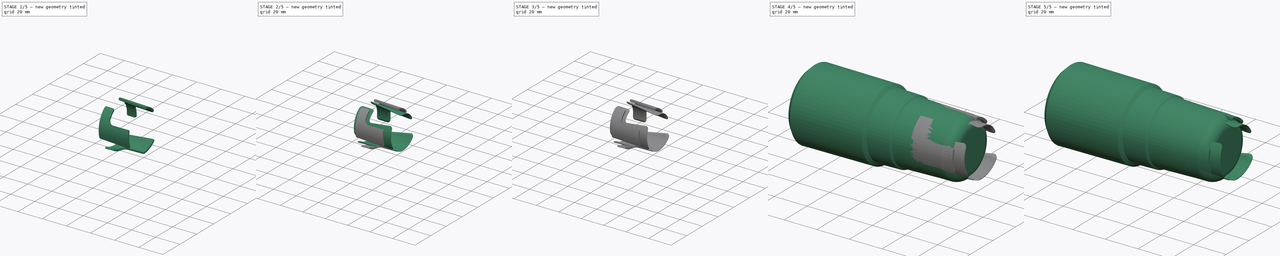
[diagram: build sequence overview — one tinted view per stage of 5, left to right]
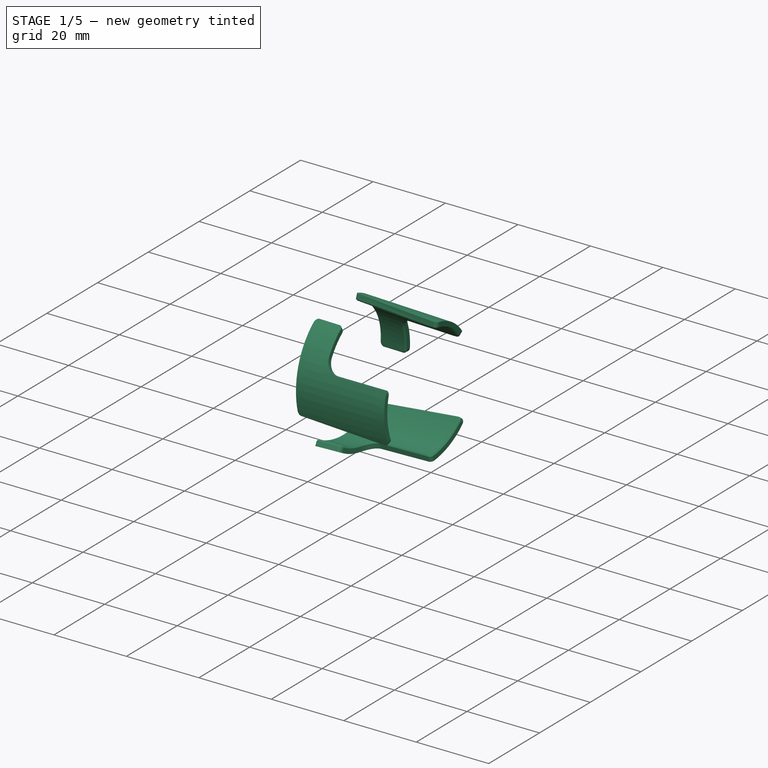
[diagram: stage 1 of 5 — iso view after this stage's code; geometry added in this stage tinted green]
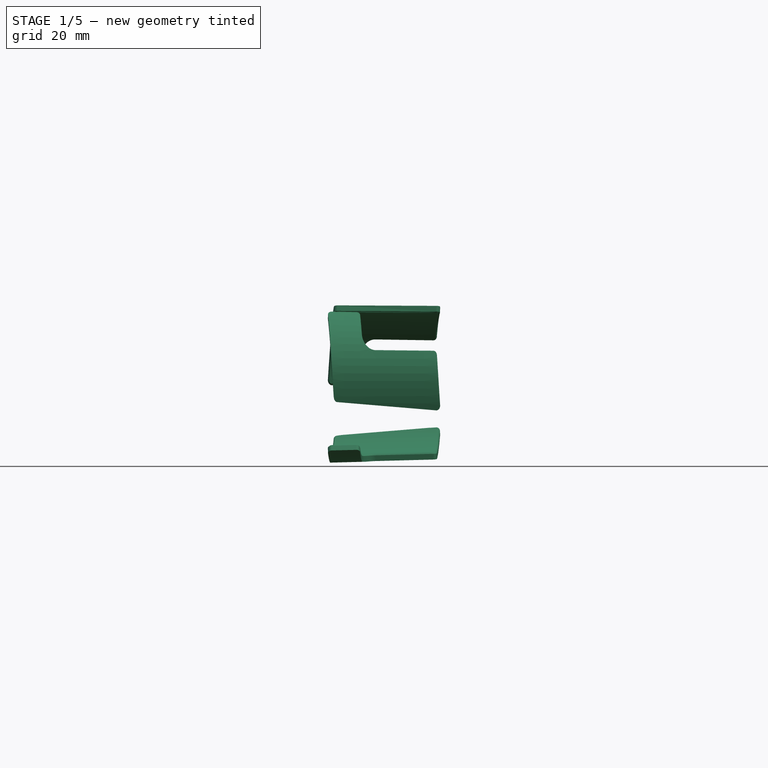
[diagram: stage 1 of 5 — front view after this stage's code; geometry added in this stage tinted green]
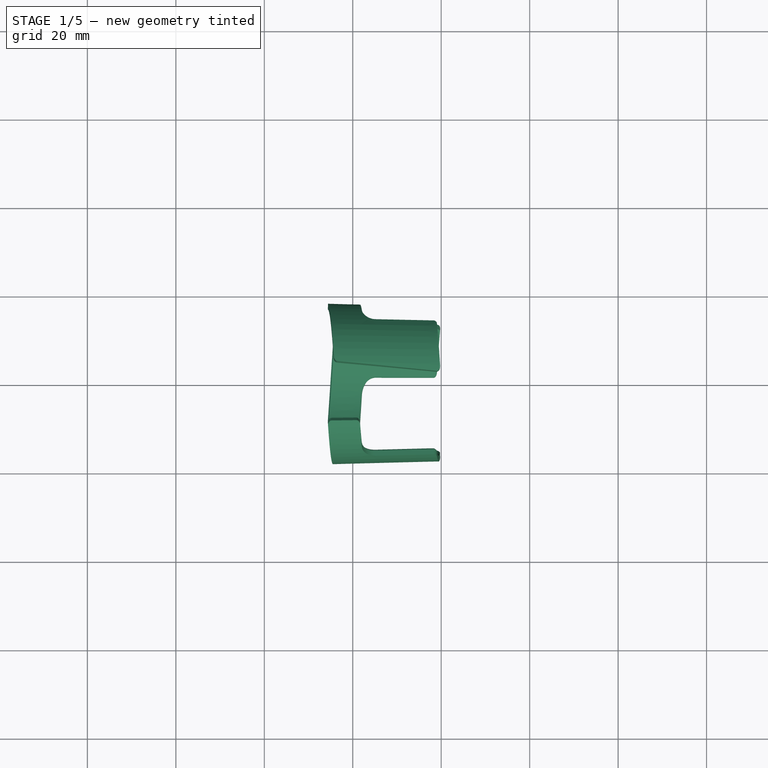
[diagram: stage 1 of 5 — top view after this stage's code; geometry added in this stage tinted green]
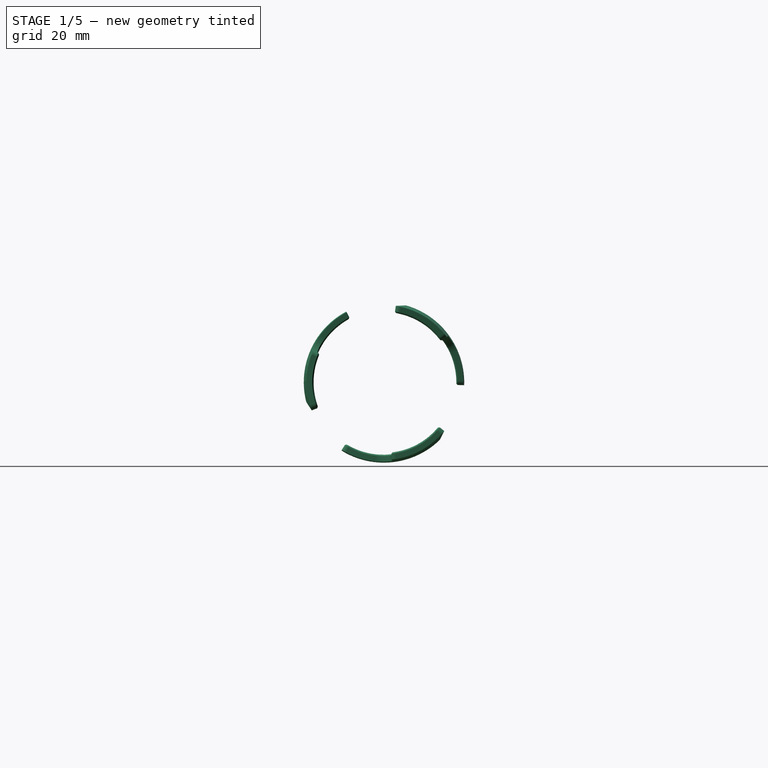
[diagram: stage 1 of 5 — right view after this stage's code; geometry added in this stage tinted green]
FCSTD DOCUMENT  (FreeCAD 0.20R)
Label: VacuumNozzle
License: Creative Commons Attribution-NonCommercial
LicenseURL: http://creativecommons.org/licenses/by-nc/4.0/
objects: Part::FeaturePython×6, Sketcher::SketchObject×4, PartDesign::Chamfer×3, PartDesign::Body×3, Part::Compound×3, Part::Feature×3, PartDesign::FeatureBase×2, PartDesign::Revolution×1, Part::Offset×1, Part::Cut×1, PartDesign::Fillet×1, Part::Chamfer×1
note: 31 computed .brp shape members not serialized (recipe doc carries the construction recipe); baked Part::Feature solids carry a one-line shape summary decoded from their .brp

FEATURE [Part::Feature] Shell001
  shape: bbox 36.06 x 37.49 x 37.49 mm, 3 faces, 0 solids (baked)
FEATURE [Sketcher::SketchObject] Sketch002
  FullyConstrained = false
  MapMode = 45
  Placement = pos=(75.4438,8e-16,0) rot=(0.57735,0.57735,0.57735;2.0944rad)
  Support = -> [Shell001]
  sketch-geometry (16):
    g0: LineSegment StartX=-57.0199 StartY=18.15 StartZ=0 EndX=57.0199 EndY=18.15 EndZ=0
    g1: LineSegment StartX=57.0199 StartY=18.15 StartZ=0 EndX=57.0199 EndY=-18.15 EndZ=0
    g2: LineSegment StartX=57.0199 StartY=-18.15 StartZ=0 EndX=-57.0199 EndY=-18.15 EndZ=0
    g3: LineSegment StartX=-48.1513 StartY=-0.414598 StartZ=0 EndX=-48.1513 EndY=7.7354 EndZ=0
    g4: LineSegment StartX=-25.0947 StartY=0.293025 StartZ=0 EndX=-46.8467 EndY=-1.61003 EndZ=0
    g5: ArcOfCircle CenterX=-46.9513 CenterY=7.7354 CenterZ=0 NormalX=0 NormalY=0 NormalZ=1 AngleXU=0 Radius=1.2 StartAngle=1.65806 EndAngle=3.14159
    g6: ArcOfCircle CenterX=-46.9513 CenterY=-0.414598 CenterZ=0 NormalX=0 NormalY=0 NormalZ=1 AngleXU=0 Radius=1.2 StartAngle=3.14159 EndAngle=4.79966
    g7: ArcOfCircle CenterX=-25.1993 CenterY=1.48846 CenterZ=0 NormalX=0 NormalY=0 NormalZ=1 AngleXU=0 Radius=1.2 StartAngle=4.79966 EndAngle=6.21591
    g8: LineSegment StartX=-36.1513 StartY=14.0329 StartZ=0 EndX=-36.1513 EndY=33.0173 EndZ=0
    g9: LineSegment StartX=-35.0559 StartY=34.2128 StartZ=0 EndX=-23.109 EndY=35.258 EndZ=0
    g10: LineSegment StartX=-21.8072 StartY=33.9819 StartZ=0 EndX=-24.002 EndY=1.40779 EndZ=0
    g11: LineSegment StartX=-40.2835 StartY=9.52334 StartZ=0 EndX=-47.0559 EndY=8.93084 EndZ=0
    g12: ArcOfCircle CenterX=-34.9513 CenterY=33.0173 CenterZ=0 NormalX=0 NormalY=0 NormalZ=1 AngleXU=0 Radius=1.2 StartAngle=1.65806 EndAngle=3.14159
    g13: ArcOfCircle CenterX=-23.0045 CenterY=34.0625 CenterZ=0 NormalX=0 NormalY=0 NormalZ=1 AngleXU=0 Radius=1.2 StartAngle=6.21591 EndAngle=7.94125
    g14: GeomPoint X=-23.1513 Y=14.0329 Z=0
    g15: ArcOfCircle CenterX=-40.6781 CenterY=14.0329 CenterZ=0 NormalX=0 NormalY=0 NormalZ=1 AngleXU=0 Radius=4.52675 StartAngle=4.79966 EndAngle=6.28319
  constraints (38):
    c: Coincident(g0,g1)
    c: Coincident(g1,g2)
    c: Horizontal(g0)
    c: Horizontal(g2)
    c: Vertical(g1)
    c: Symmetric(g0,g1,g-1)
    c: DistanceY(g2,g0) = 36.3
    c: DistanceX(g0,g0) = 114.04
    c: Tangent(g3,g5) = 1.5708
    c: Tangent(g3,g6) = 1.5708
    c: Tangent(g4,g6) = 1.5708
    c: Tangent(g4,g7) = 1.5708
    c: Equal(g7,g5)
    c: Radius(g7) = 1.2
    c: Parallel(g11,g4)
    c: Tangent(g8,g12) = 1.5708
    c: Tangent(g9,g12) = 1.5708
    c: Tangent(g9,g13) = 1.5708
    c: Tangent(g10,g13) = 1.5708
    c: Equal(g12,g5)
    c: Equal(g6,g13)
    c: Parallel(g9,g11)
    c: Radius(g6) = 1.2
    c: Vertical(g3)
    c: Angle(g4) = 3.22886
    c: PointOnObject(g14,g10)
    c: Horizontal(g14,g8)
    c: DistanceX(g8,g14) = 13
    c: DistanceX(g3,g8) = 12
    c: Tangent(g11,g5) = -1.5708
    c: Tangent(g10,g7) = 1.5708
    c: DistanceX(g13) = -23.0045
    c: DistanceY(g13) = 34.0625
    c: Tangent(g15,g8) = -1.5708
    c: Tangent(g15,g11) = 1.5708
    c: DistanceX(g15) = -40.6781
    c: Vertical(g8)
    c: DistanceY(g6,g5) = 8.15
FEATURE [Part::FeaturePython] Sketch_On_Surface001  # WARN: FeaturePython — macro-defined, semantics opaque (R4)
  ConstructionBounds = true
  FillExtrusion = true
  FillFaces = true
  ReverseU = false
  ReverseV = false
  Sketch = -> Sketch002
  SwapUV = false
  Thickness = -1.6
FEATURE [PartDesign::Body] Body001  label="NozzleKnockoutV2"
  BaseFeature = -> Cut
  Group = -> [BaseFeature,Fillet,Chamfer001]
  Origin = -> Origin001
  Tip = -> Chamfer001
FEATURE [Part::Chamfer] Chamfer002
  Base = -> Sketch_On_Surface001
  Edges = 1 edges r=0.3: [Edge20]
FEATURE [Part::FeaturePython] Array003  # Draft array (typed FeaturePython)
  Angle = 360
  ArrayType = 1
  Axis = (1,0,0)
  Base = -> Chamfer002
  Center = (0,0,0)
  Count = 3
  ExpandArray = false
  Fuse = false
  IntervalAxis = (0,0,0)
  IntervalX = (50,0,0)
  IntervalY = (0,50,0)
  IntervalZ = (0,0,50)
  NumberCircles = 3
  NumberPolar = 3
  NumberX = 2
  NumberY = 2
  NumberZ = 1
  PlacementList = 3 placements: [(0,0,0),(0,0,0),(0,0,0)]
  RadialDistance = 50
  ScaleList = (3) [(1,1,1),(1,1,1),(1,1,1)]
  Symmetry = 1
  TangentialDistance = 25
FEATURE [Part::Compound] Compound003  label="NotchKnockout"
  Links = -> [Array003]
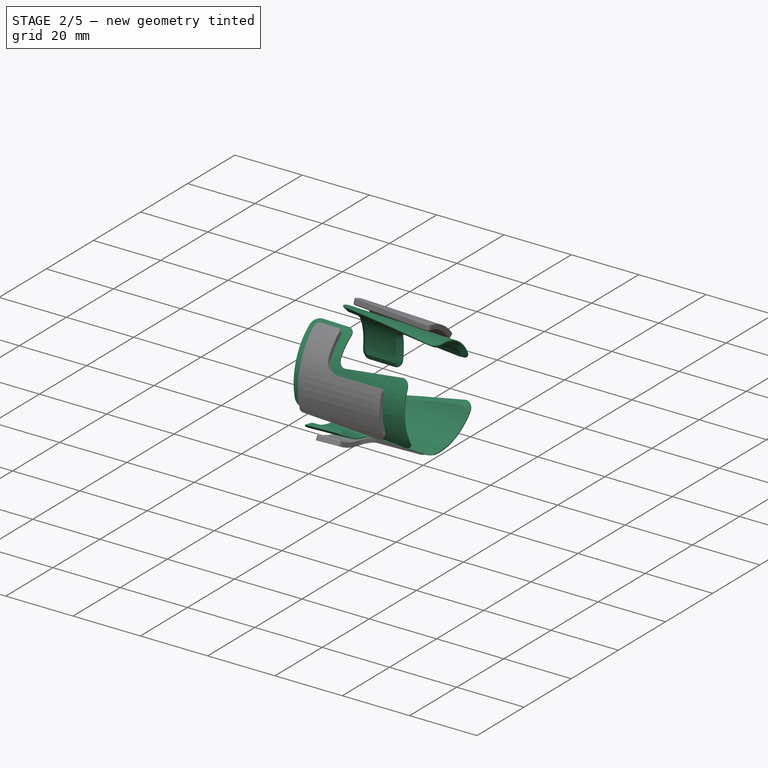
[diagram: stage 2 of 5 — iso view after this stage's code; geometry added in this stage tinted green]
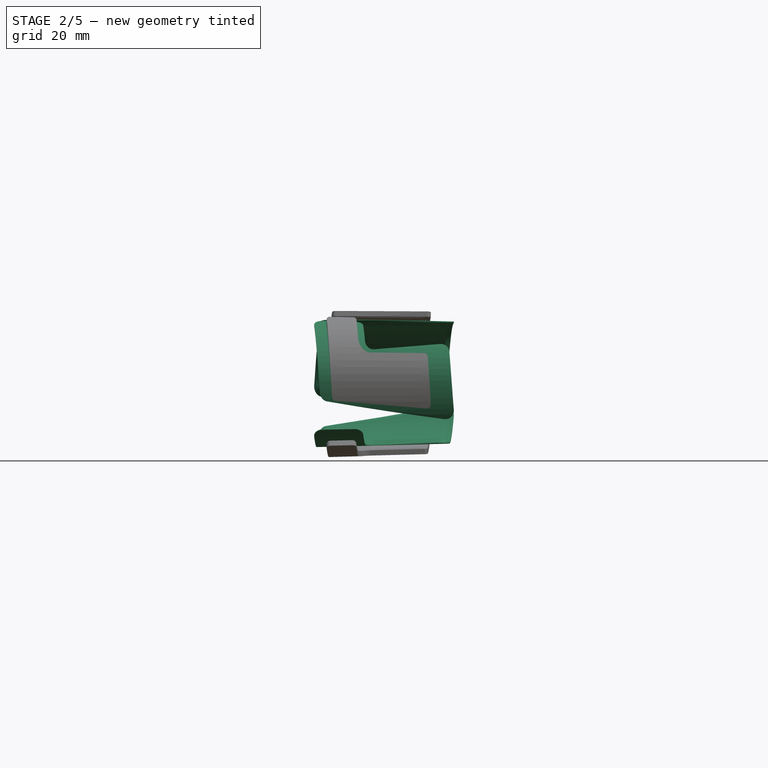
[diagram: stage 2 of 5 — front view after this stage's code; geometry added in this stage tinted green]
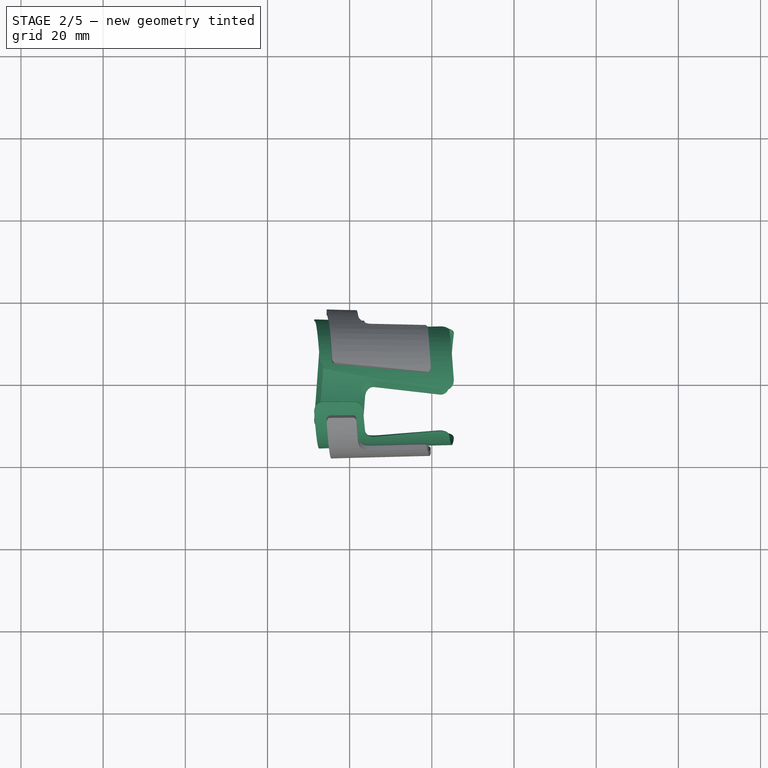
[diagram: stage 2 of 5 — top view after this stage's code; geometry added in this stage tinted green]
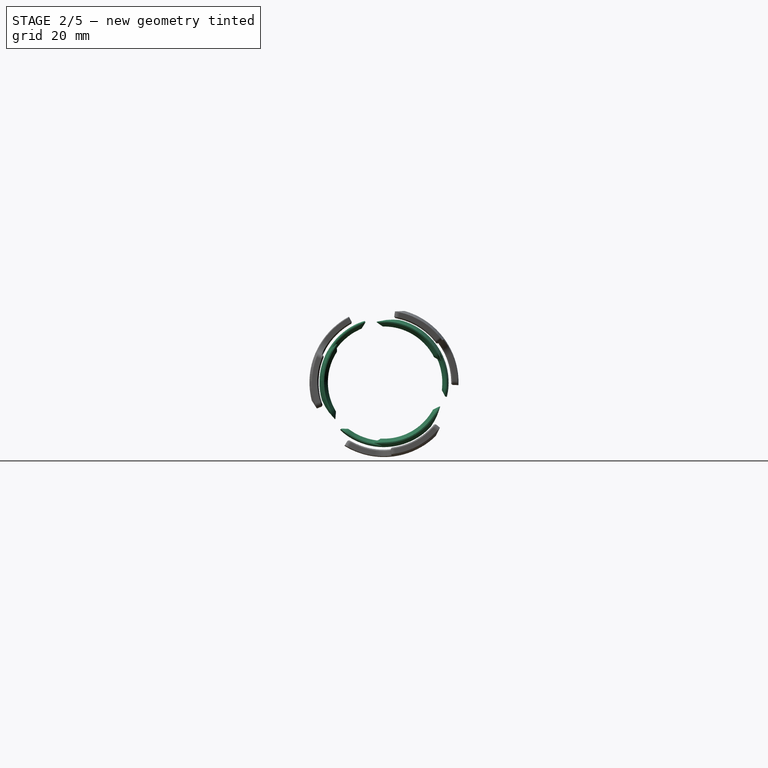
[diagram: stage 2 of 5 — right view after this stage's code; geometry added in this stage tinted green]
FEATURE [Part::Feature] Shell002
  shape: bbox 36.06 x 37.49 x 37.49 mm, 3 faces, 0 solids (baked)
FEATURE [Sketcher::SketchObject] Sketch003
  FullyConstrained = true
  MapMode = 45
  Placement = pos=(75.4438,8e-16,0) rot=(0.57735,0.57735,0.57735;2.0944rad)
  Support = -> [Shell002]
  sketch-geometry (17):
    g0: LineSegment StartX=-57.0199 StartY=18.15 StartZ=0 EndX=57.0199 EndY=18.15 EndZ=0
    g1: LineSegment StartX=57.0199 StartY=18.15 StartZ=0 EndX=57.0199 EndY=-18.15 EndZ=0
    g2: LineSegment StartX=57.0199 StartY=-18.15 StartZ=0 EndX=-57.0199 EndY=-18.15 EndZ=0
    g3: LineSegment StartX=-57.0199 StartY=-18.15 StartZ=0 EndX=-57.0199 EndY=18.15 EndZ=0
    g4: LineSegment StartX=-51.5903 StartY=-2.93843 StartZ=0 EndX=-51.5903 EndY=8.42501 EndZ=0
    g5: LineSegment StartX=-25.8049 StartY=-3.95643 StartZ=0 EndX=-48.3289 EndY=-5.92702 EndZ=0
    g6: ArcOfCircle CenterX=-48.5903 CenterY=8.42501 CenterZ=0 NormalX=0 NormalY=0 NormalZ=1 AngleXU=0 Radius=3 StartAngle=1.65806 EndAngle=3.14159
    g7: ArcOfCircle CenterX=-48.5903 CenterY=-2.93843 CenterZ=0 NormalX=0 NormalY=0 NormalZ=1 AngleXU=0 Radius=3 StartAngle=3.14159 EndAngle=4.79966
    g8: ArcOfCircle CenterX=-26.0664 CenterY=-0.967844 CenterZ=0 NormalX=0 NormalY=0 NormalZ=1 AngleXU=0 Radius=3 StartAngle=4.79966 EndAngle=6.1346
    g9: LineSegment StartX=-38.5903 StartY=15.3507 StartZ=0 EndX=-40.8451 EndY=38.6376 EndZ=0
    g10: LineSegment StartX=-38.1205 StartY=41.9154 StartZ=0 EndX=-20.1205 EndY=43.4902 EndZ=0
    g11: LineSegment StartX=-16.8921 StartY=40.0575 StartZ=0 EndX=-23.0994 EndY=-1.41195 EndZ=0
    g12: LineSegment StartX=-41.3149 StartY=12.073 StartZ=0 EndX=-48.8518 EndY=11.4136 EndZ=0
    g13: ArcOfCircle CenterX=-41.5764 CenterY=15.0616 CenterZ=0 NormalX=0 NormalY=0 NormalZ=1 AngleXU=0 Radius=3 StartAngle=4.79966 EndAngle=6.37971
    g14: ArcOfCircle CenterX=-37.859 CenterY=38.9268 CenterZ=0 NormalX=0 NormalY=0 NormalZ=1 AngleXU=0 Radius=3 StartAngle=1.65806 EndAngle=3.23812
    g15: ArcOfCircle CenterX=-19.859 CenterY=40.5016 CenterZ=0 NormalX=0 NormalY=0 NormalZ=1 AngleXU=0 Radius=3 StartAngle=6.1346 EndAngle=7.94125
    g16: GeomPoint X=-20.5903 Y=15.3507 Z=0
  constraints (43):
    c: Coincident(g0,g1)
    c: Coincident(g1,g2)
    c: Coincident(g2,g3)
    c: Coincident(g3,g0)
    c: Horizontal(g0)
    c: Horizontal(g2)
    c: Vertical(g1)
    c: Vertical(g3)
    c: Symmetric(g0,g1,g-1)
    c: DistanceY(g3,g3) = 36.3
    c: DistanceX(g0,g0) = 114.04
    c: Tangent(g4,g6) = 1.5708
    c: Tangent(g4,g7) = 1.5708
    c: Tangent(g5,g7) = 1.5708
    c: Tangent(g5,g8) = 1.5708
    c: Equal(g8,g6)
    c: Radius(g8) = 3
    c: Parallel(g12,g5)
    c: Tangent(g9,g13) = -1.5708
    c: Tangent(g12,g13) = 1.5708
    c: Equal(g8,g13)
    c: Tangent(g9,g14) = 1.5708
    c: Tangent(g10,g14) = 1.5708
    c: Tangent(g10,g15) = 1.5708
    c: Tangent(g11,g15) = 1.5708
    c: Equal(g14,g6)
    c: Equal(g7,g15)
    c: Parallel(g10,g12)
    c: Radius(g7) = 3
    c: Vertical(g4)
    c: Angle(g5) = 3.22886
    c: PointOnObject(g16,g11)
    c: Horizontal(g16,g9)
    c: DistanceX(g9,g16) = 18
    c: DistanceX(g4,g9) = 13
    c: Tangent(g12,g6) = -1.5708
    c: Tangent(g11,g8) = 1.5708
    c: DistanceY(g5,g12) = 18
    c: DistanceX(g14,g15) = 18
    c: DistanceY(g7,g15) = 43.44
    c: DistanceX(g8) = -26.0664
    c: DistanceY(g8) = -0.967844
    c: DistanceX(g15) = -19.859
FEATURE [Part::FeaturePython] Sketch_On_Surface002  label="Reinforcement_Sketch_On_Surface002"  # WARN: FeaturePython — macro-defined, semantics opaque (R4)
  ConstructionBounds = true
  FillExtrusion = true
  FillFaces = true
  Offset = -2.5
  ReverseU = false
  ReverseV = false
  Sketch = -> Sketch003
  SwapUV = false
  Thickness = -1.25
FEATURE [PartDesign::FeatureBase] BaseFeature001
  BaseFeature = -> Sketch_On_Surface002
FEATURE [PartDesign::Chamfer] Chamfer003
  Angle = 36
  Base = -> BaseFeature001 [Edge22]
  BaseFeature = -> BaseFeature001
  ChamferType = 2
  FlipDirection = false
  Size = 1.3
  Size2 = 1
  SupportTransform = false
FEATURE [PartDesign::Body] Body002
  BaseFeature = -> Sketch_On_Surface002
  Group = -> [BaseFeature001,Chamfer003]
  Origin = -> Origin002
  Tip = -> Chamfer003
FEATURE [Part::FeaturePython] Array002  # Draft array (typed FeaturePython)
  Angle = 360
  ArrayType = 1
  Axis = (1,0,0)
  Base = -> Body002
  Center = (0,0,0)
  Count = 3
  ExpandArray = false
  Fuse = false
  IntervalAxis = (0,0,0)
  IntervalX = (50,0,0)
  IntervalY = (0,50,0)
  IntervalZ = (0,0,50)
  NumberCircles = 3
  NumberPolar = 3
  NumberX = 2
  NumberY = 2
  NumberZ = 1
  PlacementList = 3 placements: [(0,0,0),(0,0,0),(0,0,0)]
  RadialDistance = 50
  ScaleList = (3) [(1,1,1),(1,1,1),(1,1,1)]
  Symmetry = 1
  TangentialDistance = 25
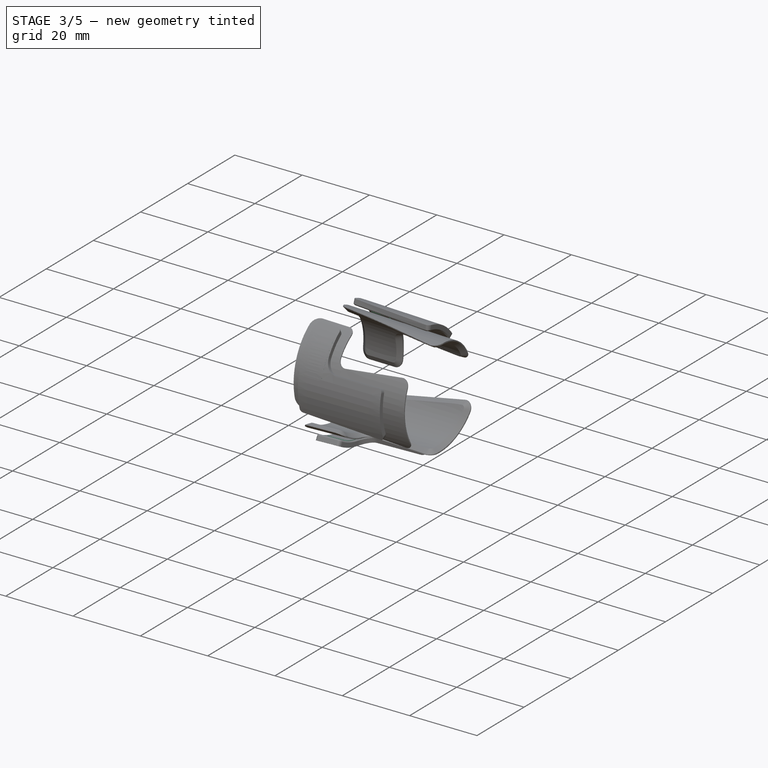
[diagram: stage 3 of 5 — iso view after this stage's code; geometry added in this stage tinted green]
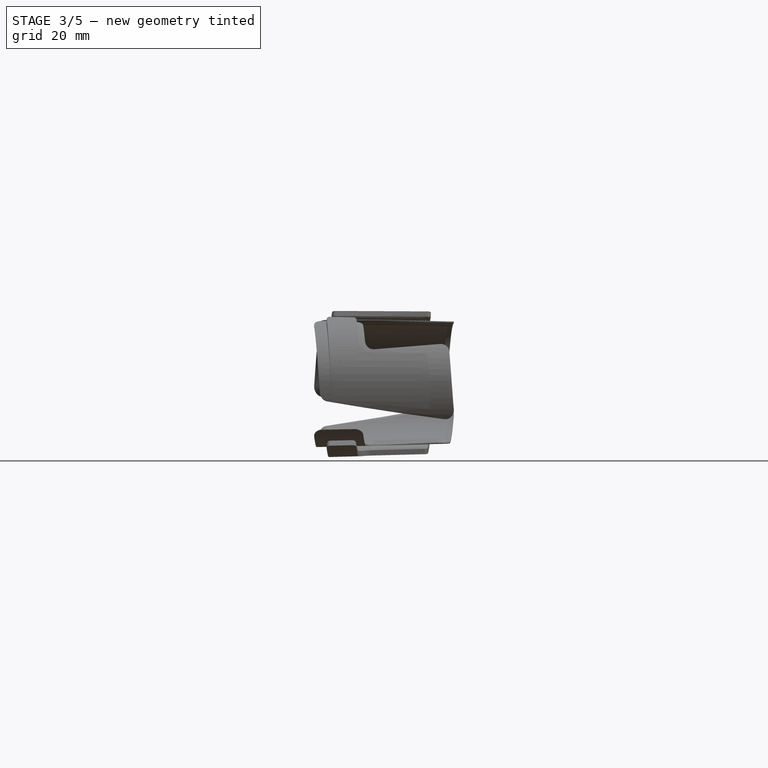
[diagram: stage 3 of 5 — front view after this stage's code; geometry added in this stage tinted green]
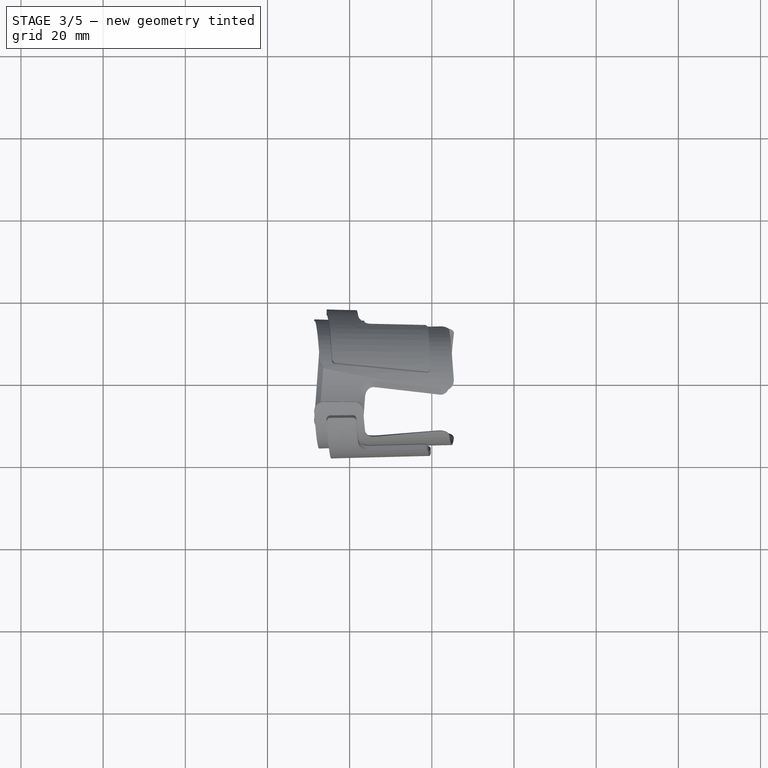
[diagram: stage 3 of 5 — top view after this stage's code; geometry added in this stage tinted green]
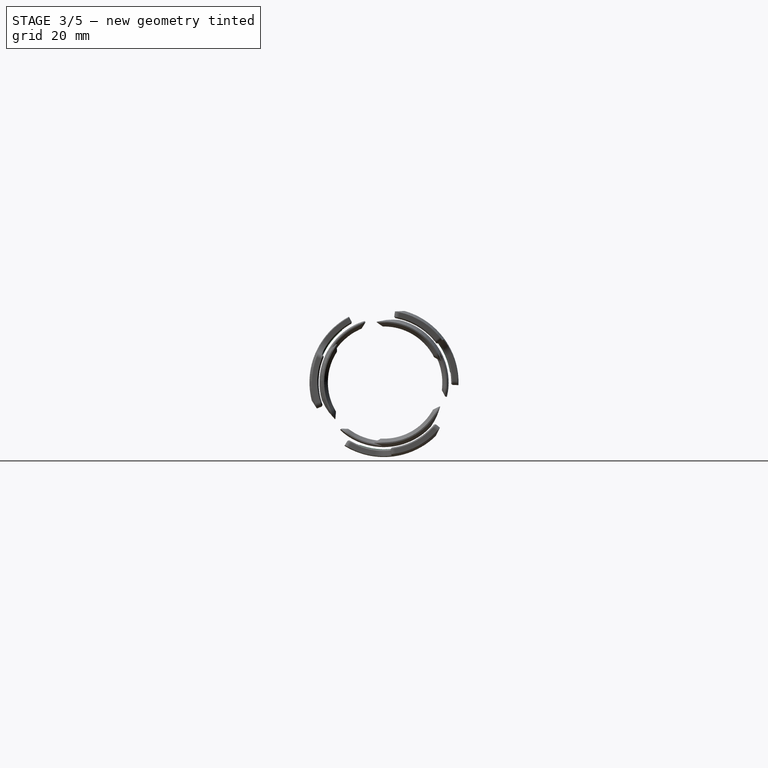
[diagram: stage 3 of 5 — right view after this stage's code; geometry added in this stage tinted green]
FEATURE [Part::Feature] Shell
  shape: bbox 36.06 x 37.49 x 37.49 mm, 3 faces, 0 solids (baked)
FEATURE [Sketcher::SketchObject] Sketch001
  FullyConstrained = false
  MapMode = 45
  Placement = pos=(75.4438,8e-16,0) rot=(0.57735,0.57735,0.57735;2.0944rad)
  Support = -> [Shell]
  sketch-geometry (12):
    g0: LineSegment StartX=-57.0199 StartY=18.15 StartZ=0 EndX=57.0199 EndY=18.15 EndZ=0
    g1: LineSegment StartX=57.0199 StartY=18.15 StartZ=0 EndX=57.0199 EndY=-18.15 EndZ=0
    g2: LineSegment StartX=57.0199 StartY=-18.15 StartZ=0 EndX=-57.0199 EndY=-18.15 EndZ=0
    g3: LineSegment StartX=-57.0199 StartY=-18.15 StartZ=0 EndX=-57.0199 EndY=18.15 EndZ=0
    g4: LineSegment StartX=-44.7699 StartY=0.995706 StartZ=0 EndX=-44.7699 EndY=7.40292 EndZ=0
    g5: LineSegment StartX=-43.6536 StartY=8.6 StartZ=0 EndX=-35.0536 EndY=9.20137 EndZ=0
    g6: LineSegment StartX=-33.7699 StartY=8.00429 StartZ=0 EndX=-33.7699 EndY=1.59708 EndZ=0
    g7: LineSegment StartX=-34.8861 StartY=0.4 StartZ=0 EndX=-43.4861 EndY=-0.201371 EndZ=0
    g8: ArcOfCircle CenterX=-43.5699 CenterY=7.40292 CenterZ=0 NormalX=0 NormalY=0 NormalZ=1 AngleXU=0 Radius=1.2 StartAngle=1.64061 EndAngle=3.14159
    g9: ArcOfCircle CenterX=-43.5699 CenterY=0.995706 CenterZ=0 NormalX=0 NormalY=0 NormalZ=1 AngleXU=0 Radius=1.2 StartAngle=3.14159 EndAngle=4.7822
    g10: ArcOfCircle CenterX=-34.9699 CenterY=1.59708 CenterZ=0 NormalX=0 NormalY=0 NormalZ=1 AngleXU=0 Radius=1.2 StartAngle=4.7822 EndAngle=6.28319
    g11: ArcOfCircle CenterX=-34.9699 CenterY=8.00429 CenterZ=0 NormalX=0 NormalY=0 NormalZ=1 AngleXU=0 Radius=1.2 StartAngle=3e-16 EndAngle=1.64061
  constraints (30):
    c: Coincident(g0,g1)
    c: Coincident(g1,g2)
    c: Coincident(g2,g3)
    c: Coincident(g3,g0)
    c: Horizontal(g0)
    c: Horizontal(g2)
    c: Vertical(g1)
    c: Vertical(g3)
    c: Symmetric(g0,g1,g-1)
    c: DistanceY(g3,g3) = 36.3
    c: DistanceX(g0,g0) = 114.04
    c: Equal(g5,g7)
    c: Equal(g4,g6)
    c: Angle(g-1,g5) = 3.21141
    c: Tangent(g4,g8) = 1.5708
    c: Tangent(g5,g8) = 1.5708
    c: Tangent(g4,g9) = 1.5708
    c: Tangent(g7,g9) = 1.5708
    c: Tangent(g6,g10) = 1.5708
    c: Tangent(g7,g10) = 1.5708
    c: Tangent(g5,g11) = 1.5708
    c: Tangent(g6,g11) = 1.5708
    c: Equal(g10,g8)
    c: Equal(g9,g11)
    c: Radius(g11) = 1.2
    c: Radius(g10) = 1.2
    c: Vertical(g6)
    c: DistanceX(g4,g6) = 11
    c: DistanceY(g7,g5) = 8.2
    c: DistanceY(g7) = 0.4
FEATURE [Part::FeaturePython] Sketch_On_Surface  # WARN: FeaturePython — macro-defined, semantics opaque (R4)
  ConstructionBounds = true
  FillExtrusion = true
  FillFaces = true
  ReverseU = false
  ReverseV = false
  Sketch = -> Sketch001
  SwapUV = false
  Thickness = -1.7
FEATURE [Part::FeaturePython] Array  # Draft array (typed FeaturePython)
  Angle = 360
  ArrayType = 1
  Axis = (1,0,0)
  Base = -> Sketch_On_Surface
  Center = (50,0,0)
  Count = 3
  ExpandArray = false
  Fuse = false
  IntervalAxis = (0,0,0)
  IntervalX = (50,0,0)
  IntervalY = (0,50,0)
  IntervalZ = (0,0,50)
  NumberCircles = 3
  NumberPolar = 3
  NumberX = 2
  NumberY = 2
  NumberZ = 1
  PlacementList = 3 placements: [(0,0,0),(0,0,0),(7.10543e-15,0,0)]
  RadialDistance = 50
  ScaleList = (3) [(1,1,1),(1,1,1),(1,1,1)]
  Symmetry = 1
  TangentialDistance = 25
FEATURE [Part::Compound] Compound002  label="NotchReinforcement"
  Links = -> [Array002]
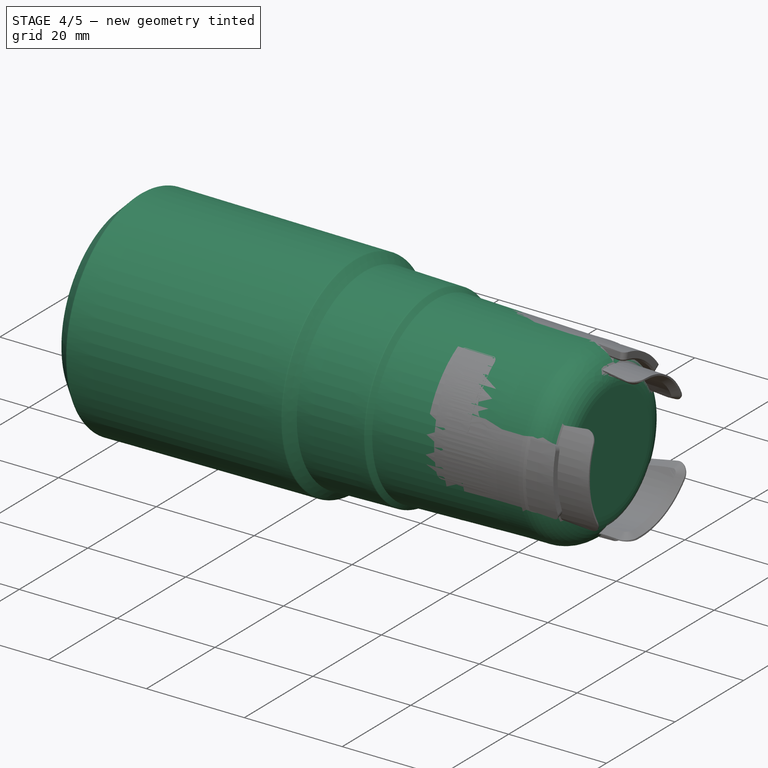
[diagram: stage 4 of 5 — iso view after this stage's code; geometry added in this stage tinted green]
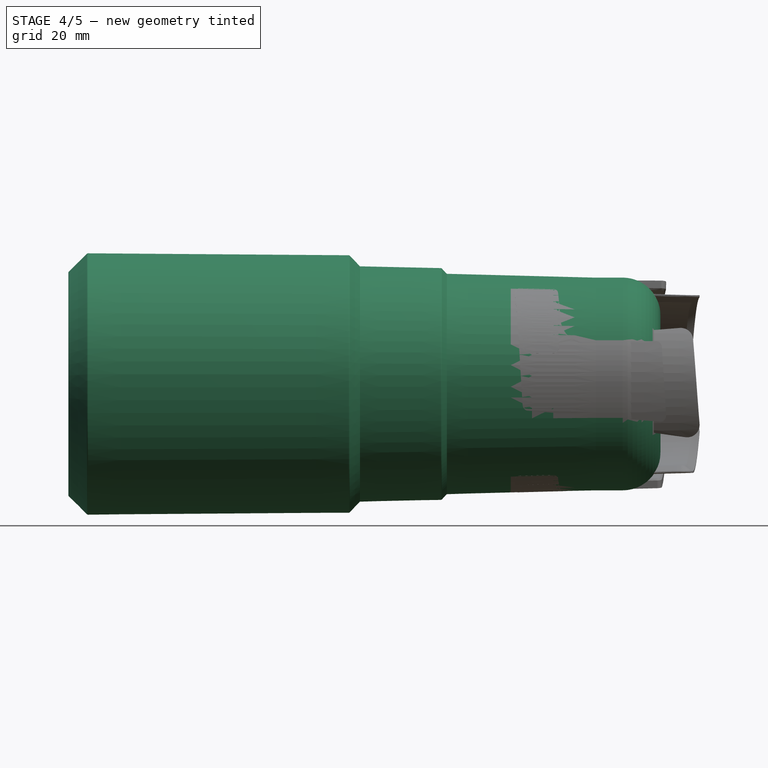
[diagram: stage 4 of 5 — front view after this stage's code; geometry added in this stage tinted green]
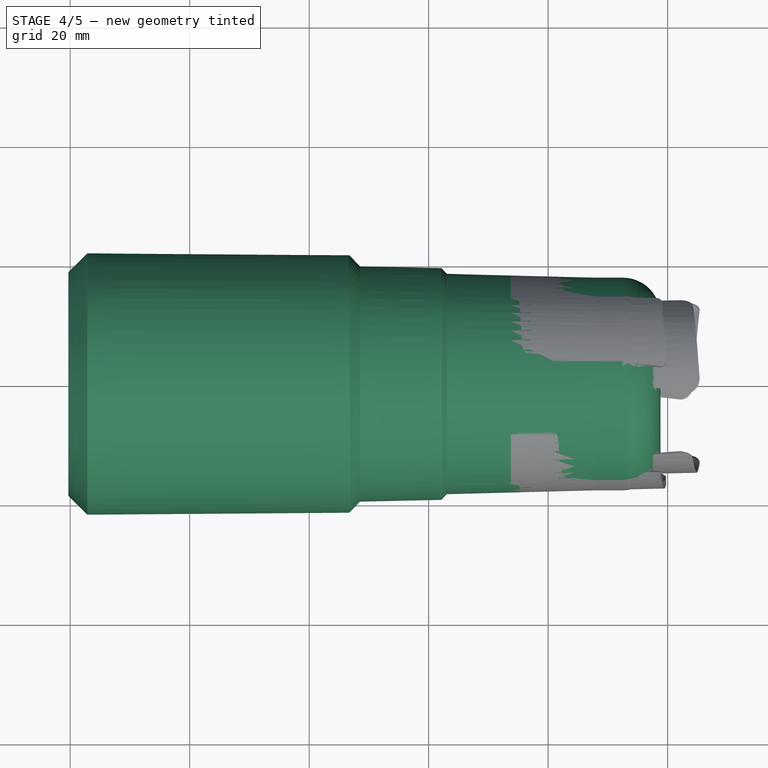
[diagram: stage 4 of 5 — top view after this stage's code; geometry added in this stage tinted green]
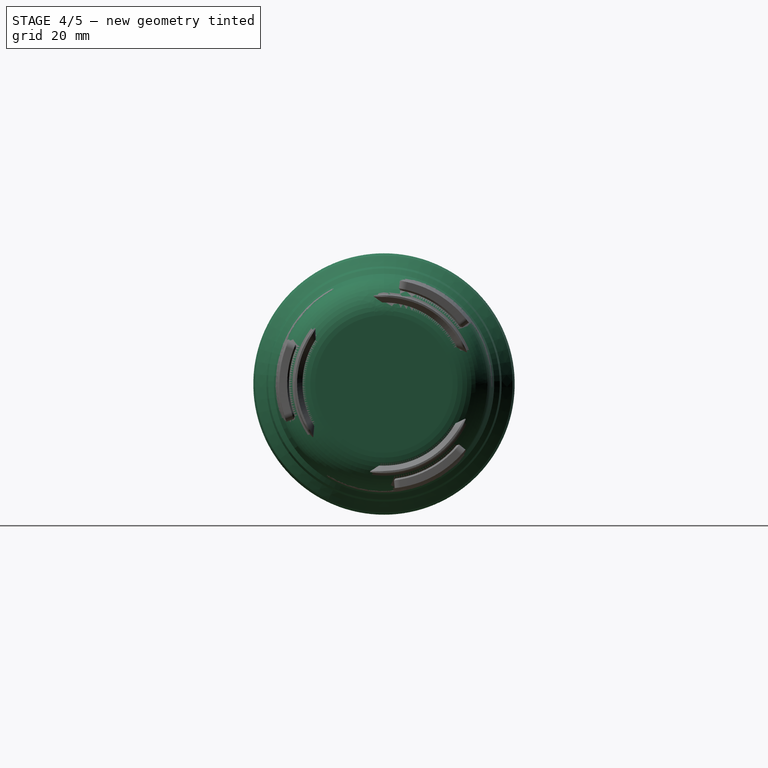
[diagram: stage 4 of 5 — right view after this stage's code; geometry added in this stage tinted green]
FEATURE [Sketcher::SketchObject] Sketch
  FullyConstrained = false
  MapMode = 5
  Placement = pos=(0,0,0) rot=(1,0,0;1.5708rad)
  Support = -> [XZ_Plane]
  sketch-geometry (12):
    g0: LineSegment StartX=0 StartY=21.6 StartZ=0 EndX=46.5987 EndY=21.25 EndZ=0
    g1: LineSegment StartX=46.5987 StartY=21.25 StartZ=0 EndX=48.3691 EndY=19.4 EndZ=0
    g2: LineSegment StartX=48.3691 StartY=19.4 StartZ=0 EndX=62.0091 EndY=19.1 EndZ=0
    g3: LineSegment StartX=62.0091 StartY=19.1 StartZ=0 EndX=62.9111 EndY=18.15 EndZ=0
    g4: LineSegment StartX=62.9111 StartY=18.15 StartZ=0 EndX=87.989 EndY=17.5 EndZ=0
    g5: LineSegment StartX=98.5 StartY=0 StartZ=0 EndX=0 EndY=0 EndZ=0
    g6: LineSegment StartX=0 StartY=0 StartZ=0 EndX=0 EndY=21.6 EndZ=0
    g7: LineSegment StartX=46.5987 StartY=21.25 StartZ=0 EndX=48.3691 EndY=19.4 EndZ=0
    g8: LineSegment StartX=62.0091 StartY=19.1 StartZ=0 EndX=62.9111 EndY=18.15 EndZ=0
    g9: LineSegment StartX=87.989 StartY=17.5 StartZ=0 EndX=92.5 EndY=17.5 EndZ=0
    g10: ArcOfCircle CenterX=92.5 CenterY=11.5 CenterZ=0 NormalX=0 NormalY=0 NormalZ=1 AngleXU=0 Radius=6 StartAngle=1.66667e-07 EndAngle=1.5708
    g11: LineSegment StartX=98.5 StartY=11.5 StartZ=0 EndX=98.5 EndY=0 EndZ=0
  constraints (34):
    c: PointOnObject(g0,g-2)
    c: Coincident(g0,g1)
    c: Coincident(g1,g2)
    c: Coincident(g3,g4)
    c: Coincident(g5,g6)
    c: Coincident(g6,g0)
    c: PointOnObject(g5,g-2)
    c: Distance(g0) = 46.6
    c: Distance(g-1,g0) = 21.6
    c: DistanceY(g0) = 21.25
    c: DistanceY(g1) = 19.4
    c: DistanceY(g2) = 19.1
    c: DistanceY(g3) = 18.15
    c: DistanceY(g4) = 17.5
    c: Horizontal(g5)
    c: PointOnObject(g7,g0)
    c: PointOnObject(g7,g2)
    c: Angle(g2,g7) = 2.35619
    c: Distance(g5) = 98.5
    c: Angle(g4,g8) = 2.35619
    c: DistanceY(g1,g7) = 1.85
    c: Coincident(g2,g3)
    c: Coincident(g2,g8)
    c: DistanceX(g2,g2) = 13.64
    c: Coincident(g3,g8)
    c: Distance(g3) = 1.31
    c: Angle(g2,g1) = 2.35619
    c: Horizontal(g9)
    c: Tangent(g10,g9) = 1.5708
    c: PointOnObject(g5,g-1)
    c: Coincident(g11,g10)
    c: Coincident(g11,g5)
    c: Vertical(g11)
    c: Coincident(g4,g9)
FEATURE [PartDesign::Revolution] Revolution
  Angle = 360
  Axis = (1,0,0)
  Base = (0,0,0)
  Placement = pos=(0,0,0) rot=(1,0,0;1.5708rad)
  Profile = -> Sketch
  ReferenceAxis = -> X_Axis
FEATURE [PartDesign::Chamfer] Chamfer
  Angle = 45
  Base = -> Revolution [Edge2]
  BaseFeature = -> Revolution
  ChamferType = 0
  FlipDirection = false
  Placement = pos=(0,0,0) rot=(1,0,0;1.5708rad)
  Size = 3
  Size2 = 1
  SupportTransform = false
FEATURE [PartDesign::Body] Body  label="Nozzle"
  Group = -> [Sketch,Revolution,Chamfer]
  Origin = -> Origin
  Tip = -> Chamfer
FEATURE [Part::Compound] Compound
  Links = -> [Body]
  Placement = pos=(5.8e-15,0,0) rot=(0,0,1;0rad)
FEATURE [Part::Offset] Offset
  Fill = false
  Intersection = false
  Join = 0
  Mode = 0
  SelfIntersection = false
  Source = -> Compound
  Value = 0.3
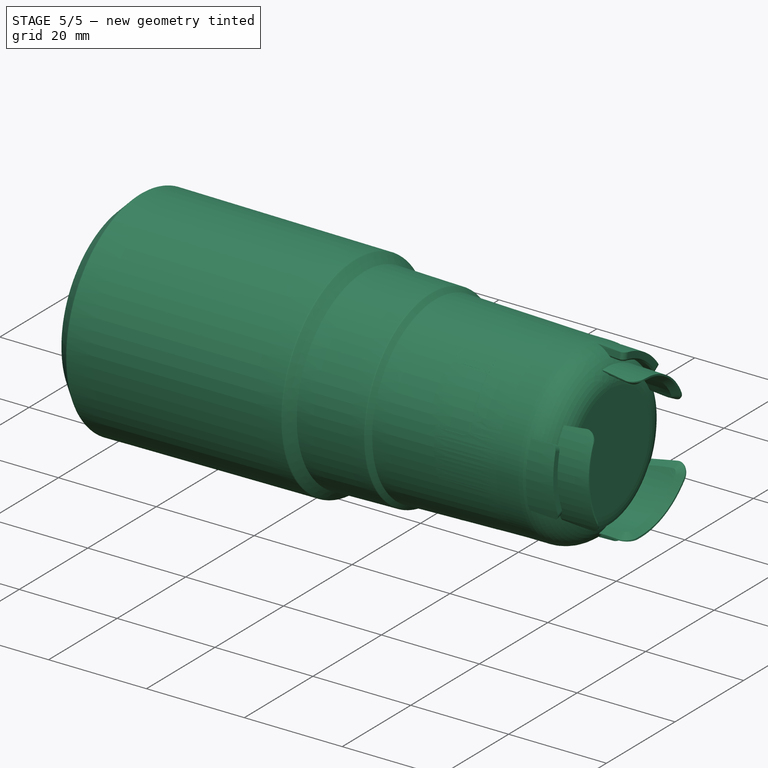
[diagram: stage 5 of 5 — iso view after this stage's code; geometry added in this stage tinted green]
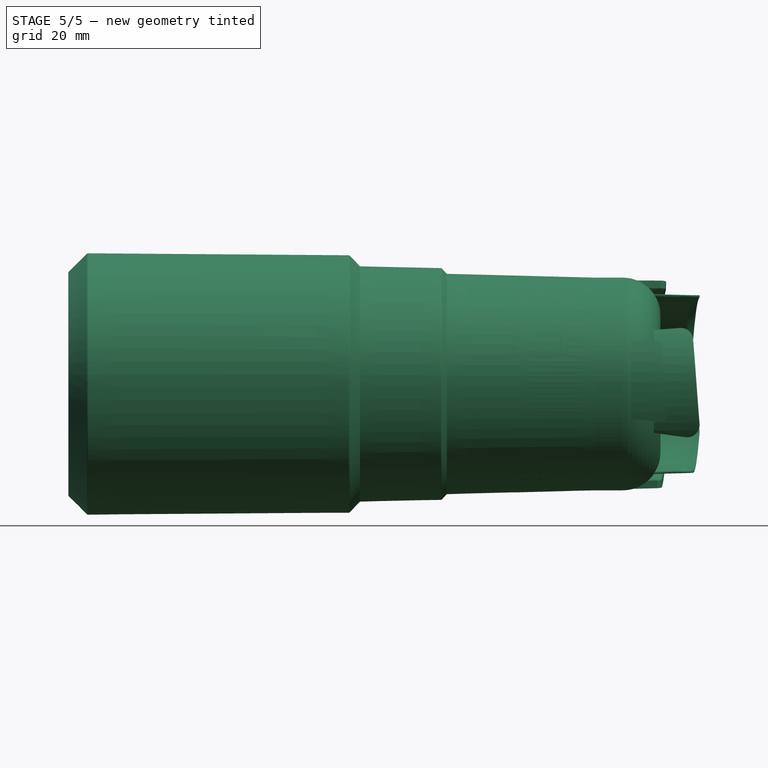
[diagram: stage 5 of 5 — front view after this stage's code; geometry added in this stage tinted green]
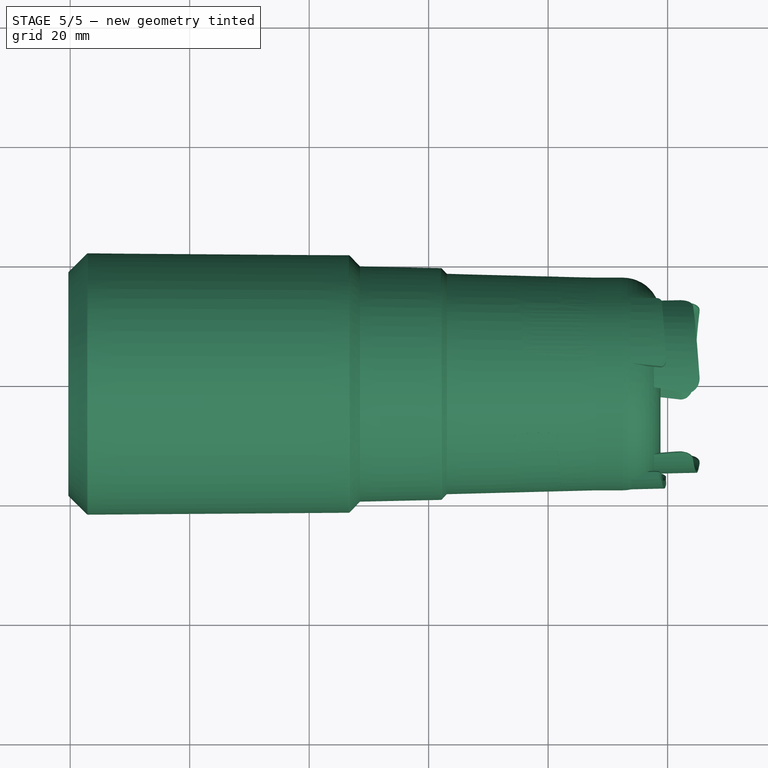
[diagram: stage 5 of 5 — top view after this stage's code; geometry added in this stage tinted green]
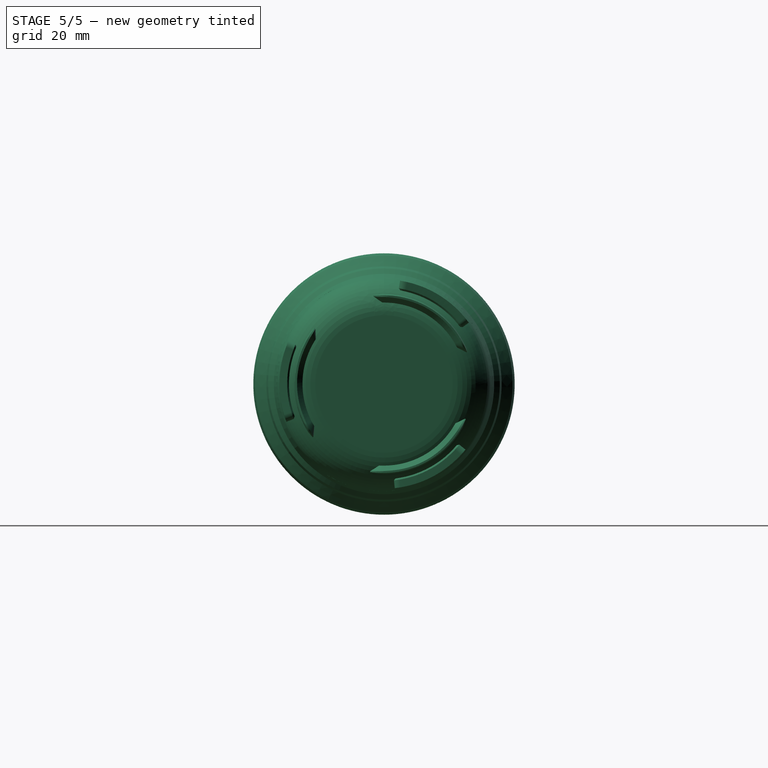
[diagram: stage 5 of 5 — right view after this stage's code; geometry added in this stage tinted green]
FEATURE [Part::Cut] Cut
  Base = -> Offset
  Tool = -> Array
FEATURE [PartDesign::FeatureBase] BaseFeature
  BaseFeature = -> Cut
FEATURE [PartDesign::Fillet] Fillet
  Base = -> BaseFeature [Edge49,Edge81,Edge74]
  BaseFeature = -> BaseFeature
  Radius = 0.6
  SupportTransform = false
FEATURE [PartDesign::Chamfer] Chamfer001
  Angle = 45
  Base = -> Fillet [Edge18,Edge28,Edge24]
  BaseFeature = -> Fillet
  ChamferType = 0
  FlipDirection = false
  Size = 0.3
  Size2 = 1
  SupportTransform = false
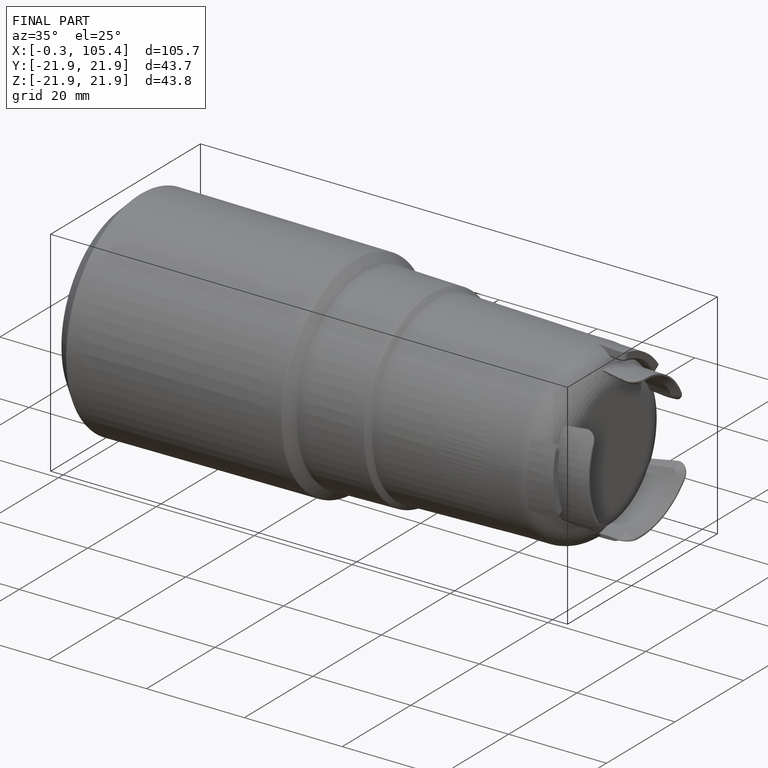
[diagram: finished part — iso view with bounding-box wireframe]
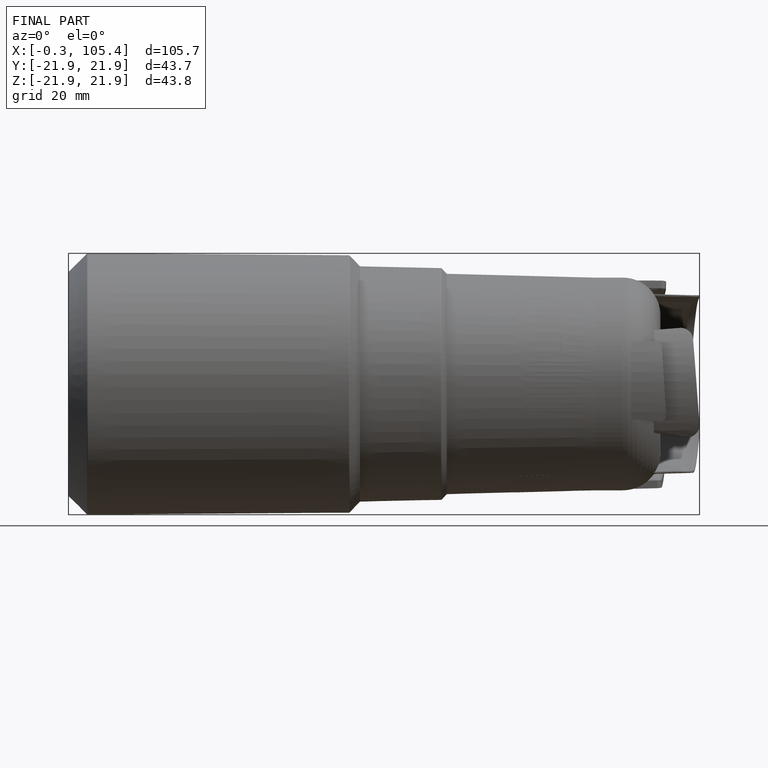
[diagram: finished part — front view with bounding-box wireframe]
